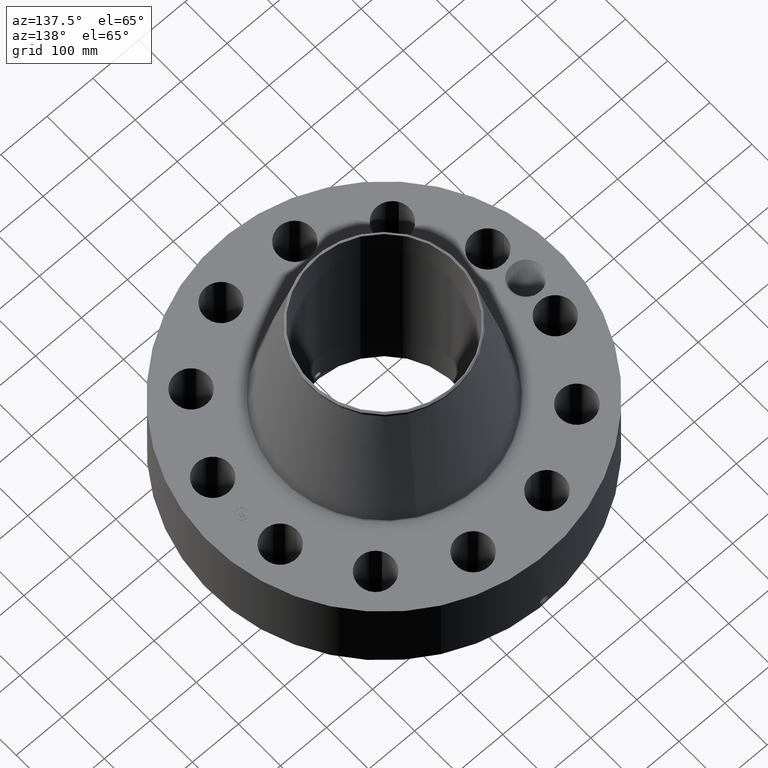
[diagram: clean part render]
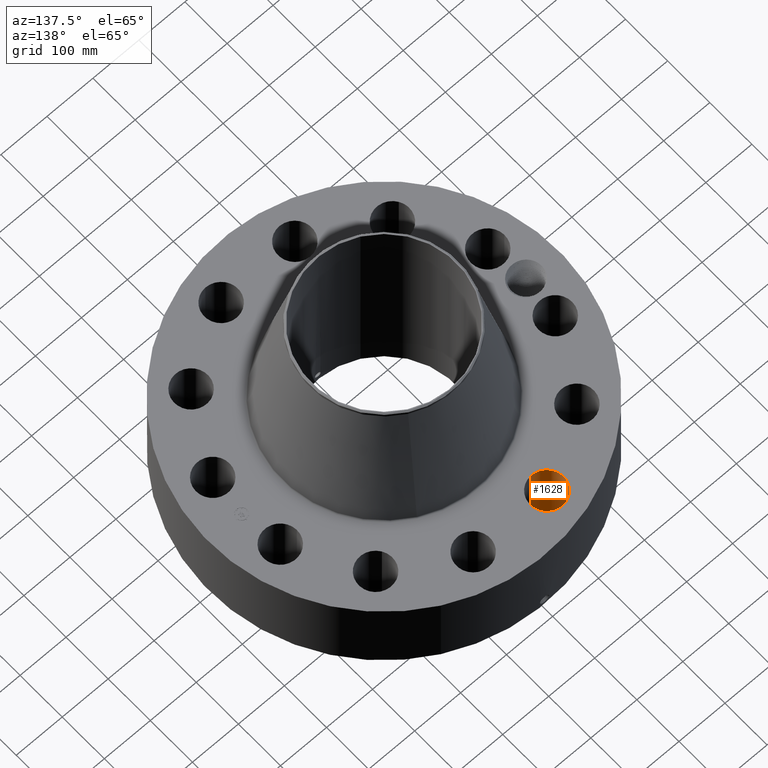
[diagram: same view with one face highlighted and labeled with its STEP entity id]
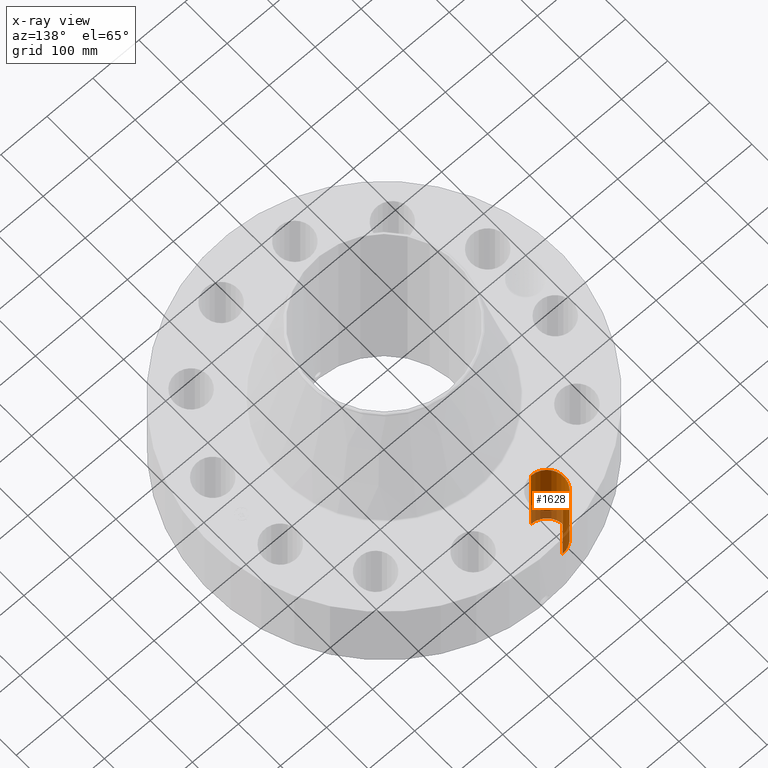
[diagram: x-ray of the same camera — body ghosted, the highlighted face saturated]
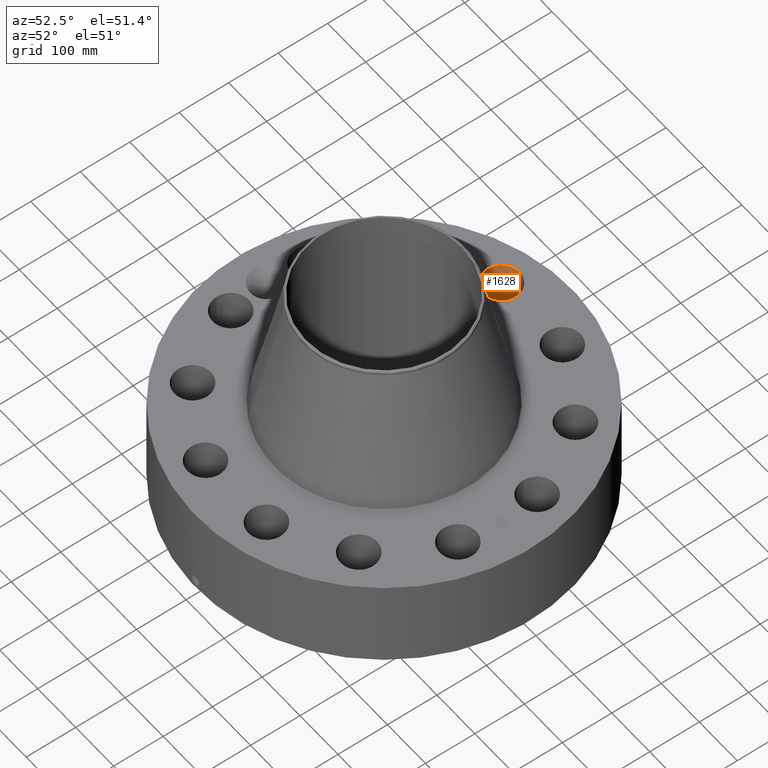
[diagram: same view with one face highlighted and labeled with its STEP entity id]
A machine part, auxiliary view. The second image highlights one B-rep face of the part: STEP entity #1628.
The next image is the same camera in x-ray: the body ghosted, the highlighted face saturated — about 24% of this face is hidden behind the body in this view.
A second angle (auxiliary view) of the same face is appended — the face is thin or edge-on in the first view.
In plain terms, the highlighted cylindrical surface (edge-blend (fillet) strip) has radius 36.576 mm, axis along (0, 0, -1).
Its self-contained STEP definition (entity closure, byte-faithful):
#404=AXIS2_PLACEMENT_3D('Circle Axis2P3D',#402,#403,$) ;
#820=AXIS2_PLACEMENT_3D('Circle Axis2P3D',#818,#819,$) ;
#1610=AXIS2_PLACEMENT_3D('Cylinder Axis2P3D',#1607,#1608,#1609) ;
#402=CARTESIAN_POINT('Axis2P3D Location',(-3.15500415981,11.7746358225,0.250000000001)) ;
#406=CARTESIAN_POINT('Vertex',(-3.12102507699,10.3350367735,0.250000000001)) ;
#408=CARTESIAN_POINT('Vertex',(-3.18898324263,13.2142348715,0.250000000001)) ;
#813=CARTESIAN_POINT('Vertex',(-3.18898324263,13.2142348715,7.50000000003)) ;
#815=CARTESIAN_POINT('Vertex',(-3.12102507699,10.3350367735,7.50000000003)) ;
#818=CARTESIAN_POINT('Axis2P3D Location',(-3.15500415981,11.7746358225,7.50000000003)) ;
#1607=CARTESIAN_POINT('Axis2P3D Location',(-3.15500415981,11.7746358225,7.49606299216)) ;
#1612=CARTESIAN_POINT('Line Origine',(-3.12102507699,10.3350367735,3.87500000002)) ;
#1617=CARTESIAN_POINT('Line Origine',(-3.18898324263,13.2142348715,3.87500000002)) ;
#403=DIRECTION('Axis2P3D Direction',(0.,0.,-0.0393700787402)) ;
#819=DIRECTION('Axis2P3D Direction',(0.,0.,-0.0393700787402)) ;
#1608=DIRECTION('Axis2P3D Direction',(0.,0.,-0.0393700787402)) ;
#1609=DIRECTION('Axis2P3D XDirection',(-0.000928999420902,0.039359116607,0.)) ;
#1613=DIRECTION('Vector Direction',(0.,0.,-0.0393700787402)) ;
#1618=DIRECTION('Vector Direction',(0.,0.,-0.0393700787402)) ;
#1614=VECTOR('Line Direction',#1613,0.0393700787402) ;
#1619=VECTOR('Line Direction',#1618,0.0393700787402) ;
#1623=ORIENTED_EDGE('',*,*,#1616,.F.) ;
#1624=ORIENTED_EDGE('',*,*,#410,.T.) ;
#1625=ORIENTED_EDGE('',*,*,#1621,.T.) ;
#1626=ORIENTED_EDGE('',*,*,#822,.F.) ;
#1628=ADVANCED_FACE('PartBody',(#1627),#1611,.F.) ;
#405=CIRCLE('generated circle',#404,1.44000000001) ;
#821=CIRCLE('generated circle',#820,1.44000000001) ;
#1611=CYLINDRICAL_SURFACE('generated cylinder',#1610,1.44000000001) ;
#410=EDGE_CURVE('',#407,#409,#405,.T.) ;
#822=EDGE_CURVE('',#816,#814,#821,.T.) ;
#1616=EDGE_CURVE('',#407,#816,#1615,.F.) ;
#1621=EDGE_CURVE('',#409,#814,#1620,.F.) ;
#1622=EDGE_LOOP('',(#1623,#1624,#1625,#1626)) ;
#1627=FACE_OUTER_BOUND('',#1622,.T.) ;
#1615=LINE('Line',#1612,#1614) ;
#1620=LINE('Line',#1617,#1619) ;
#407=VERTEX_POINT('',#406) ;
#409=VERTEX_POINT('',#408) ;
#814=VERTEX_POINT('',#813) ;
#816=VERTEX_POINT('',#815) ;